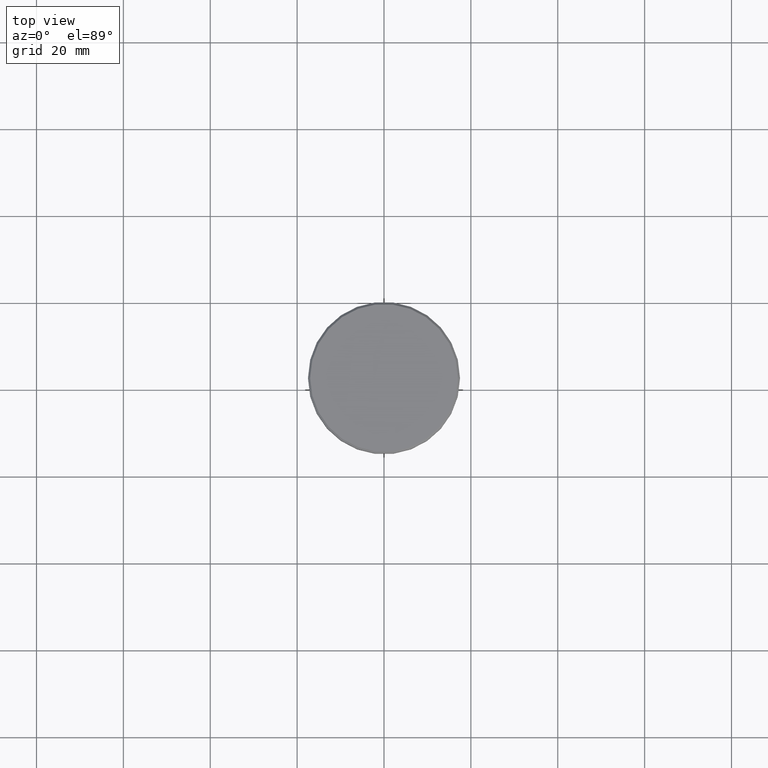
[diagram: clean part render]
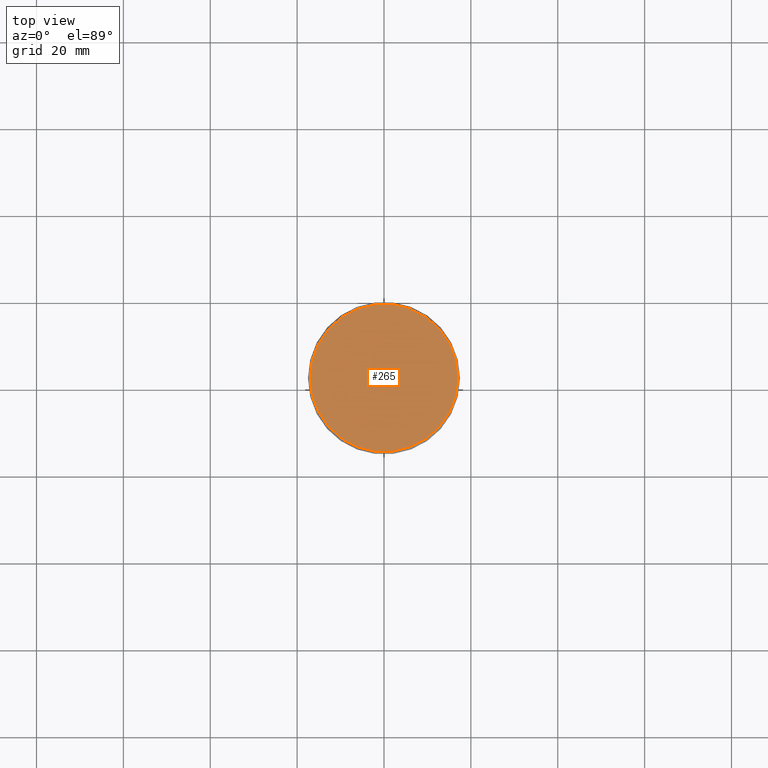
[diagram: same view with one face highlighted and labeled with its STEP entity id]
A machine part, top view. The second image highlights one B-rep face of the part: STEP entity #265.
In plain terms, the highlighted planar face has unit normal (0, -0, 1).
Its self-contained STEP definition (entity closure, byte-faithful):
#2 = CARTESIAN_POINT ( 'NONE',  ( 17.00000000000000000, 2.112515728529184067E-15, 0.000000000000000000 ) ) ;
#54 = DIRECTION ( 'NONE',  ( 1.000000000000000000, 0.000000000000000000, 0.000000000000000000 ) ) ;
#57 = PLANE ( 'NONE',  #876 ) ;
#146 = CARTESIAN_POINT ( 'NONE',  ( -17.00000000000000000, 0.000000000000000000, 0.000000000000000000 ) ) ;
#185 = ORIENTED_EDGE ( 'NONE', *, *, #1070, .T. ) ;
#263 = CIRCLE ( 'NONE', #616, 17.00000000000000000 ) ;
#265 = ADVANCED_FACE ( 'NONE', ( #596 ), #57, .T. ) ;
#282 = CIRCLE ( 'NONE', #733, 17.00000000000000000 ) ;
#318 = VERTEX_POINT ( 'NONE', #146 ) ;
#347 = EDGE_LOOP ( 'NONE', ( #470, #185 ) ) ;
#470 = ORIENTED_EDGE ( 'NONE', *, *, #766, .T. ) ;
#596 = FACE_OUTER_BOUND ( 'NONE', #347, .T. ) ;
#603 = DIRECTION ( 'NONE',  ( 1.000000000000000000, 0.000000000000000000, 0.000000000000000000 ) ) ;
#616 = AXIS2_PLACEMENT_3D ( 'NONE', #1111, #664, #1013 ) ;
#664 = DIRECTION ( 'NONE',  ( -0.000000000000000000, -0.000000000000000000, 1.000000000000000000 ) ) ;
#696 = CARTESIAN_POINT ( 'NONE',  ( 0.000000000000000000, 0.000000000000000000, 0.000000000000000000 ) ) ;
#698 = VERTEX_POINT ( 'NONE', #2 ) ;
#733 = AXIS2_PLACEMENT_3D ( 'NONE', #1152, #1147, #603 ) ;
#766 = EDGE_CURVE ( 'NONE', #318, #698, #263, .T. ) ;
#876 = AXIS2_PLACEMENT_3D ( 'NONE', #696, #950, #54 ) ;
#950 = DIRECTION ( 'NONE',  ( 0.000000000000000000, -0.000000000000000000, 1.000000000000000000 ) ) ;
#1013 = DIRECTION ( 'NONE',  ( 1.000000000000000000, 0.000000000000000000, 0.000000000000000000 ) ) ;
#1070 = EDGE_CURVE ( 'NONE', #698, #318, #282, .T. ) ;
#1111 = CARTESIAN_POINT ( 'NONE',  ( 0.000000000000000000, 0.000000000000000000, 0.000000000000000000 ) ) ;
#1147 = DIRECTION ( 'NONE',  ( -0.000000000000000000, -0.000000000000000000, 1.000000000000000000 ) ) ;
#1152 = CARTESIAN_POINT ( 'NONE',  ( 0.000000000000000000, 0.000000000000000000, 0.000000000000000000 ) ) ;